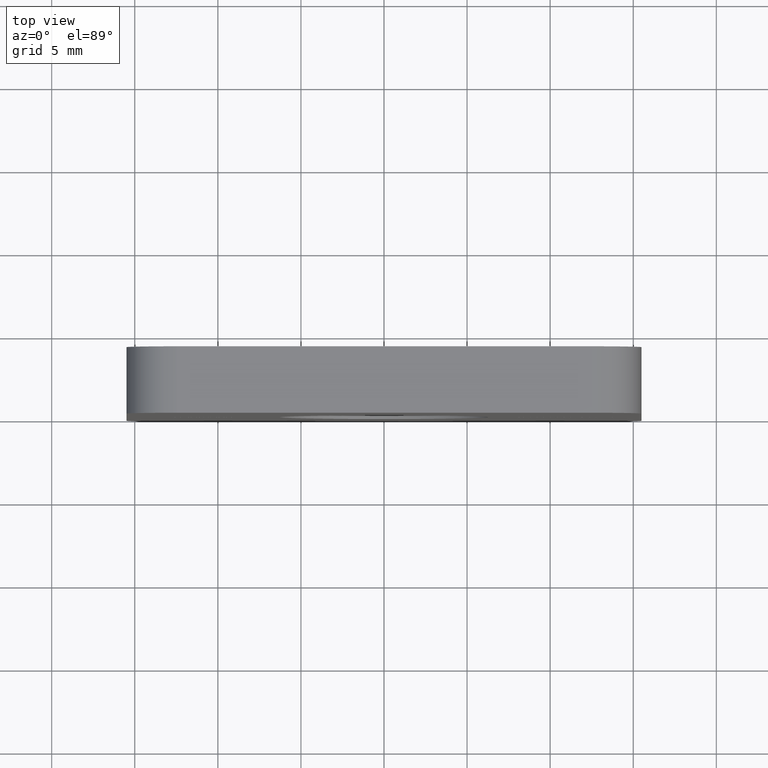
[diagram: clean part render]
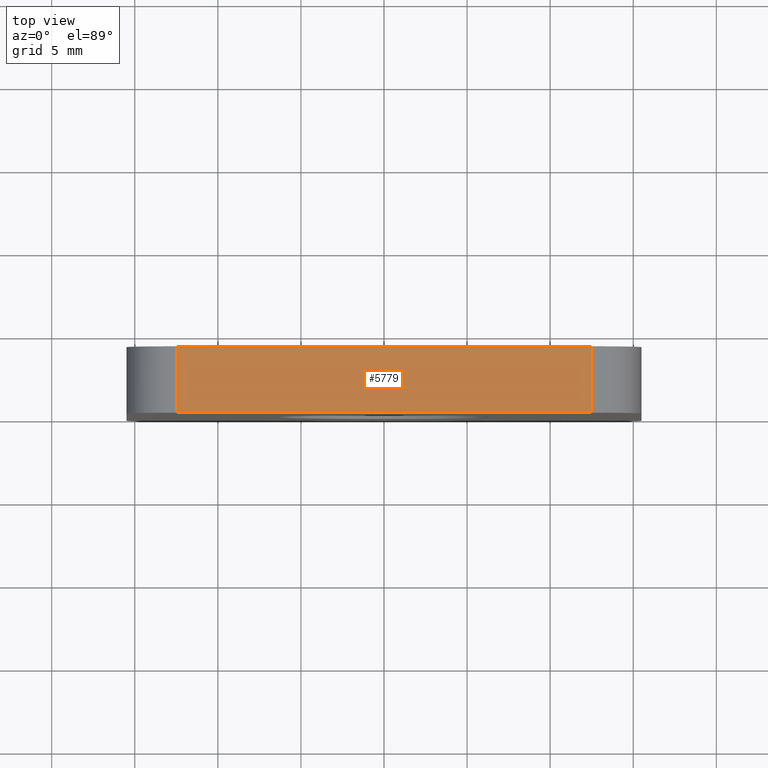
[diagram: same view with one face highlighted and labeled with its STEP entity id]
A machine part, top view. The second image highlights one B-rep face of the part: STEP entity #5779.
In plain terms, the highlighted planar face has unit normal (0, 0, -1).
Its self-contained STEP definition (entity closure, byte-faithful):
#530 = DIRECTION ( 'NONE',  ( 0.000000000000000000, -1.000000000000000000, 0.000000000000000000 ) ) ;
#1193 = EDGE_CURVE ( 'NONE', #3713, #2626, #12044, .T. ) ;
#2077 = VERTEX_POINT ( 'NONE', #13525 ) ;
#2146 = VECTOR ( 'NONE', #7100, 1000.000000000000000 ) ;
#2626 = VERTEX_POINT ( 'NONE', #3831 ) ;
#2826 = LINE ( 'NONE', #5820, #2146 ) ;
#3713 = VERTEX_POINT ( 'NONE', #16531 ) ;
#3831 = CARTESIAN_POINT ( 'NONE',  ( -12.49999999999999467, 0.000000000000000000, 15.50000000000000355 ) ) ;
#4513 = ORIENTED_EDGE ( 'NONE', *, *, #11411, .T. ) ;
#5700 = ORIENTED_EDGE ( 'NONE', *, *, #8738, .F. ) ;
#5779 = ADVANCED_FACE ( 'NONE', ( #10484 ), #10389, .F. ) ;
#5820 = CARTESIAN_POINT ( 'NONE',  ( 12.50000000000000533, 4.000000000000000000, 15.50000000000000355 ) ) ;
#6055 = CARTESIAN_POINT ( 'NONE',  ( -15.49999999999999467, 4.000000000000000000, 15.50000000000000355 ) ) ;
#7100 = DIRECTION ( 'NONE',  ( -0.000000000000000000, 1.000000000000000000, -0.000000000000000000 ) ) ;
#7602 = CARTESIAN_POINT ( 'NONE',  ( -15.49999999999999467, 4.000000000000000000, 15.50000000000000355 ) ) ;
#7713 = AXIS2_PLACEMENT_3D ( 'NONE', #7602, #17343, #9054 ) ;
#8281 = VERTEX_POINT ( 'NONE', #17835 ) ;
#8361 = DIRECTION ( 'NONE',  ( 1.000000000000000000, 0.000000000000000000, 0.000000000000000000 ) ) ;
#8489 = EDGE_CURVE ( 'NONE', #8281, #2077, #2826, .T. ) ;
#8738 = EDGE_CURVE ( 'NONE', #3713, #2077, #9626, .T. ) ;
#9054 = DIRECTION ( 'NONE',  ( -1.000000000000000000, 0.000000000000000000, -0.000000000000000000 ) ) ;
#9626 = LINE ( 'NONE', #6055, #14419 ) ;
#10389 = PLANE ( 'NONE',  #7713 ) ;
#10484 = FACE_OUTER_BOUND ( 'NONE', #15135, .T. ) ;
#11411 = EDGE_CURVE ( 'NONE', #2626, #8281, #16086, .T. ) ;
#12044 = LINE ( 'NONE', #14545, #13360 ) ;
#12362 = VECTOR ( 'NONE', #8361, 1000.000000000000000 ) ;
#12985 = DIRECTION ( 'NONE',  ( 1.000000000000000000, 0.000000000000000000, 0.000000000000000000 ) ) ;
#13360 = VECTOR ( 'NONE', #530, 1000.000000000000000 ) ;
#13525 = CARTESIAN_POINT ( 'NONE',  ( 12.50000000000000533, 4.000000000000000000, 15.50000000000000355 ) ) ;
#14419 = VECTOR ( 'NONE', #12985, 1000.000000000000000 ) ;
#14545 = CARTESIAN_POINT ( 'NONE',  ( -12.49999999999999467, 4.000000000000000000, 15.50000000000000355 ) ) ;
#14627 = ORIENTED_EDGE ( 'NONE', *, *, #8489, .T. ) ;
#15135 = EDGE_LOOP ( 'NONE', ( #5700, #18103, #4513, #14627 ) ) ;
#16086 = LINE ( 'NONE', #16708, #12362 ) ;
#16531 = CARTESIAN_POINT ( 'NONE',  ( -12.49999999999999467, 4.000000000000000000, 15.50000000000000355 ) ) ;
#16708 = CARTESIAN_POINT ( 'NONE',  ( -15.49999999999999467, 0.000000000000000000, 15.50000000000000355 ) ) ;
#17343 = DIRECTION ( 'NONE',  ( 0.000000000000000000, 0.000000000000000000, -1.000000000000000000 ) ) ;
#17835 = CARTESIAN_POINT ( 'NONE',  ( 12.50000000000000533, 0.000000000000000000, 15.50000000000000355 ) ) ;
#18103 = ORIENTED_EDGE ( 'NONE', *, *, #1193, .T. ) ;